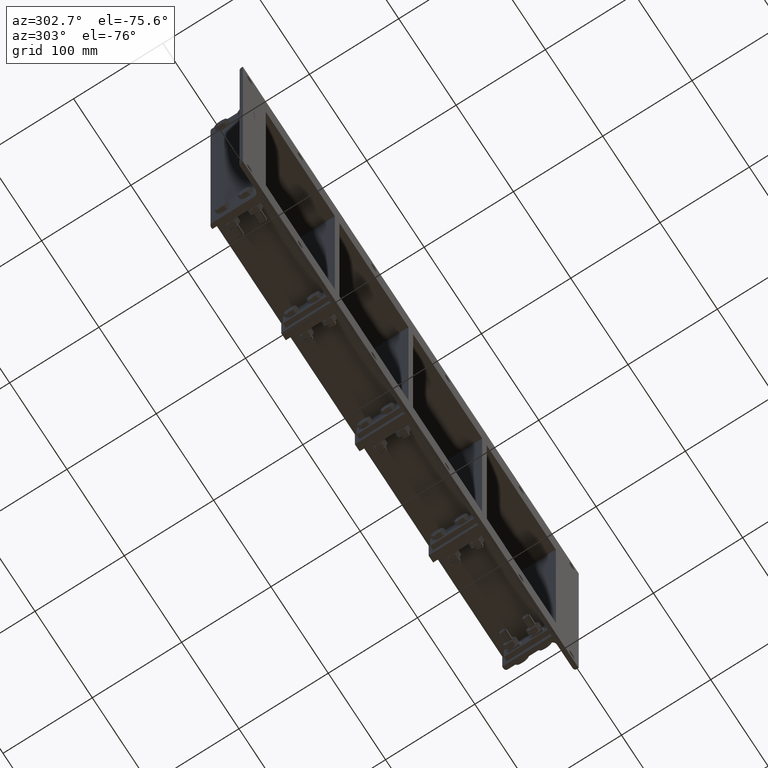
[diagram: clean part render]
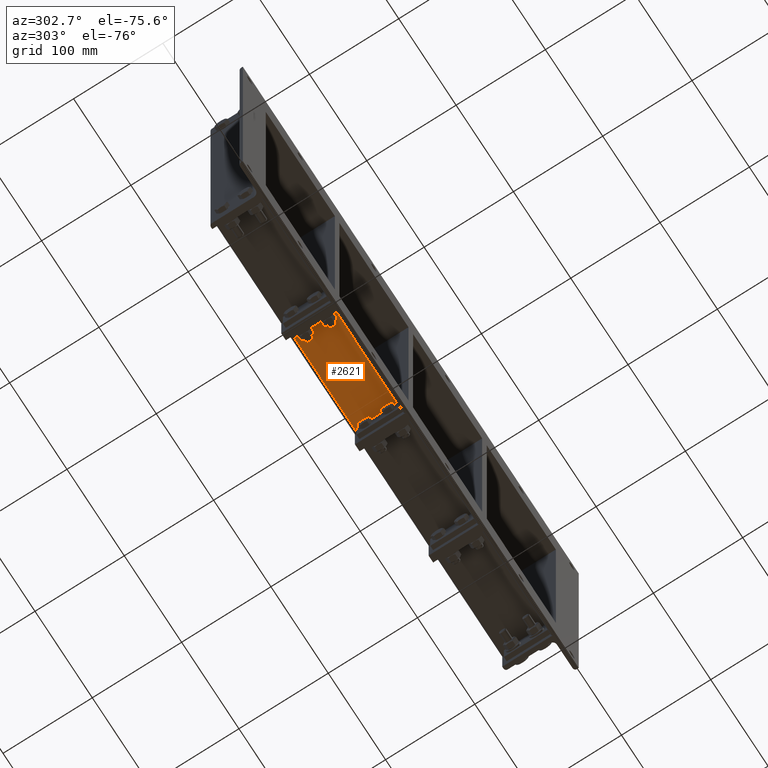
[diagram: same view with one face highlighted and labeled with its STEP entity id]
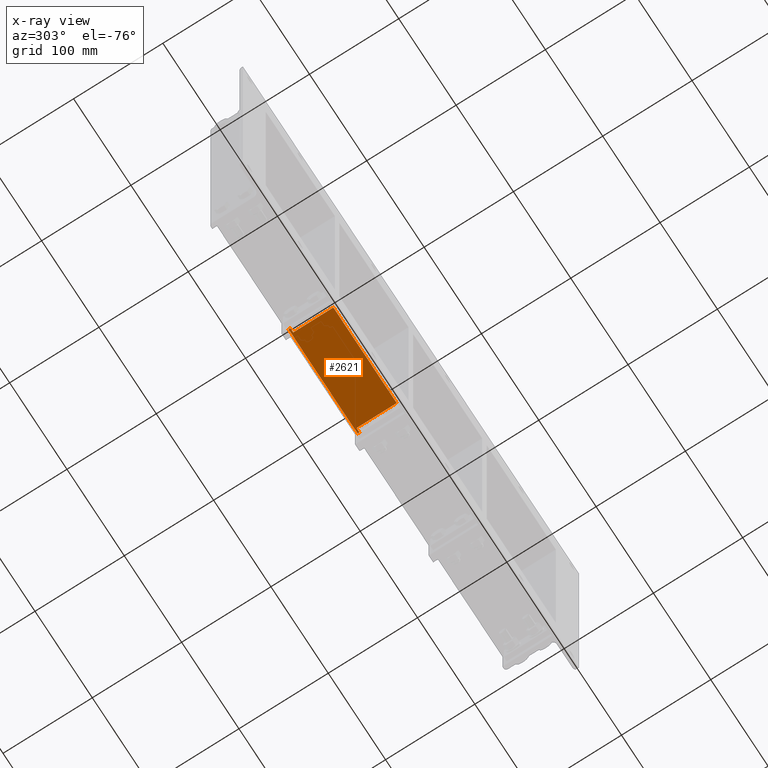
[diagram: x-ray of the same camera — body ghosted, the highlighted face saturated]
A machine part, auxiliary view. The second image highlights one B-rep face of the part: STEP entity #2621.
The next image is the same camera in x-ray: the body ghosted, the highlighted face saturated — about 0% of this face is hidden behind the body in this view.
In plain terms, the highlighted planar face has unit normal (0, 0, -1).
Its self-contained STEP definition (entity closure, byte-faithful):
#2364=CARTESIAN_POINT('',(4.999999999999979,55.0,5.000000000000018));
#2365=VERTEX_POINT('',#2364);
#2373=CARTESIAN_POINT('',(4.999999999999979,55.0,0.0));
#2374=VERTEX_POINT('',#2373);
#2381=CARTESIAN_POINT('',(4.999999999999978,55.0,5.000000000000018));
#2382=DIRECTION('',(0.0,0.0,-1.0));
#2383=VECTOR('',#2382,5.000000000000018);
#2384=LINE('',#2381,#2383);
#2385=EDGE_CURVE('',#2365,#2374,#2384,.T.);
#2397=CARTESIAN_POINT('',(4.999999999999988,9.999999999999991,5.000000000000018));
#2398=VERTEX_POINT('',#2397);
#2399=CARTESIAN_POINT('',(4.999999999999987,9.999999999999993,5.000000000000018));
#2400=DIRECTION('',(0.0,1.0,0.0));
#2401=VECTOR('',#2400,45.000000000000007);
#2402=LINE('',#2399,#2401);
#2403=EDGE_CURVE('',#2398,#2365,#2402,.T.);
#2524=CARTESIAN_POINT('',(4.999999999999979,55.0,115.49999999999999));
#2525=VERTEX_POINT('',#2524);
#2532=CARTESIAN_POINT('',(4.999999999999979,55.0,120.5));
#2533=VERTEX_POINT('',#2532);
#2534=CARTESIAN_POINT('',(4.999999999999978,55.0,120.5));
#2535=DIRECTION('',(0.0,0.0,-1.0));
#2536=VECTOR('',#2535,5.000000000000014);
#2537=LINE('',#2534,#2536);
#2538=EDGE_CURVE('',#2533,#2525,#2537,.T.);
#2557=CARTESIAN_POINT('',(4.999999999999988,9.999999999999991,115.49999999999999));
#2558=VERTEX_POINT('',#2557);
#2566=CARTESIAN_POINT('',(4.999999999999979,55.0,115.49999999999999));
#2567=DIRECTION('',(0.0,-1.0,0.0));
#2568=VECTOR('',#2567,45.000000000000007);
#2569=LINE('',#2566,#2568);
#2570=EDGE_CURVE('',#2525,#2558,#2569,.T.);
#2582=CARTESIAN_POINT('',(4.999999999999978,60.000000000000007,0.0));
#2583=DIRECTION('',(1.0,0.0,0.0));
#2584=DIRECTION('',(0.0,0.0,-1.0));
#2585=AXIS2_PLACEMENT_3D('',#2582,#2583,#2584);
#2586=PLANE('',#2585);
#2587=ORIENTED_EDGE('',*,*,#2385,.T.);
#2588=CARTESIAN_POINT('',(4.999999999999979,57.0,0.0));
#2589=VERTEX_POINT('',#2588);
#2590=CARTESIAN_POINT('',(4.99999999999998,55.0,0.0));
#2591=DIRECTION('',(0.0,1.0,0.0));
#2592=VECTOR('',#2591,2.0);
#2593=LINE('',#2590,#2592);
#2594=EDGE_CURVE('',#2374,#2589,#2593,.T.);
#2595=ORIENTED_EDGE('',*,*,#2594,.T.);
#2596=CARTESIAN_POINT('',(4.999999999999979,57.0,120.5));
#2597=VERTEX_POINT('',#2596);
#2598=CARTESIAN_POINT('',(4.999999999999979,57.0,120.5));
#2599=DIRECTION('',(0.0,0.0,-1.0));
#2600=VECTOR('',#2599,120.5);
#2601=LINE('',#2598,#2600);
#2602=EDGE_CURVE('',#2597,#2589,#2601,.T.);
#2603=ORIENTED_EDGE('',*,*,#2602,.F.);
#2604=CARTESIAN_POINT('',(4.999999999999979,57.0,120.5));
#2605=DIRECTION('',(0.0,-1.0,0.0));
#2606=VECTOR('',#2605,2.0);
#2607=LINE('',#2604,#2606);
#2608=EDGE_CURVE('',#2597,#2533,#2607,.T.);
#2609=ORIENTED_EDGE('',*,*,#2608,.T.);
#2610=ORIENTED_EDGE('',*,*,#2538,.T.);
#2611=ORIENTED_EDGE('',*,*,#2570,.T.);
#2612=CARTESIAN_POINT('',(4.999999999999988,9.999999999999991,5.000000000000018));
#2613=DIRECTION('',(0.0,0.0,1.0));
#2614=VECTOR('',#2613,110.49999999999997);
#2615=LINE('',#2612,#2614);
#2616=EDGE_CURVE('',#2398,#2558,#2615,.T.);
#2617=ORIENTED_EDGE('',*,*,#2616,.F.);
#2618=ORIENTED_EDGE('',*,*,#2403,.T.);
#2619=EDGE_LOOP('',(#2587,#2595,#2603,#2609,#2610,#2611,#2617,#2618));
#2620=FACE_OUTER_BOUND('',#2619,.T.);
#2621=ADVANCED_FACE('',(#2620),#2586,.T.);